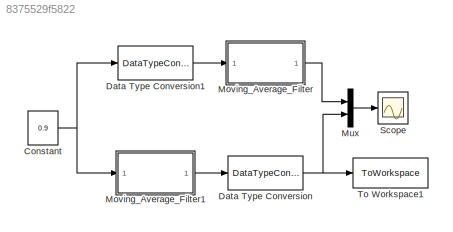
MODEL slx_8375529f5822
KIND model
BLOCK [Constant] Constant
  OutDataTypeStr = fixdt(1,14,13)
  SampleTime = 1/50e6
  Value = 0.9
  VectorParams1D = off
BLOCK [DataTypeConversion] Data Type Conversion
  OutDataTypeStr = double
  RndMeth = Floor
  SaturateOnIntegerOverflow = off
BLOCK [DataTypeConversion] Data Type Conversion1
  OutDataTypeStr = double
  RndMeth = Floor
  SaturateOnIntegerOverflow = off
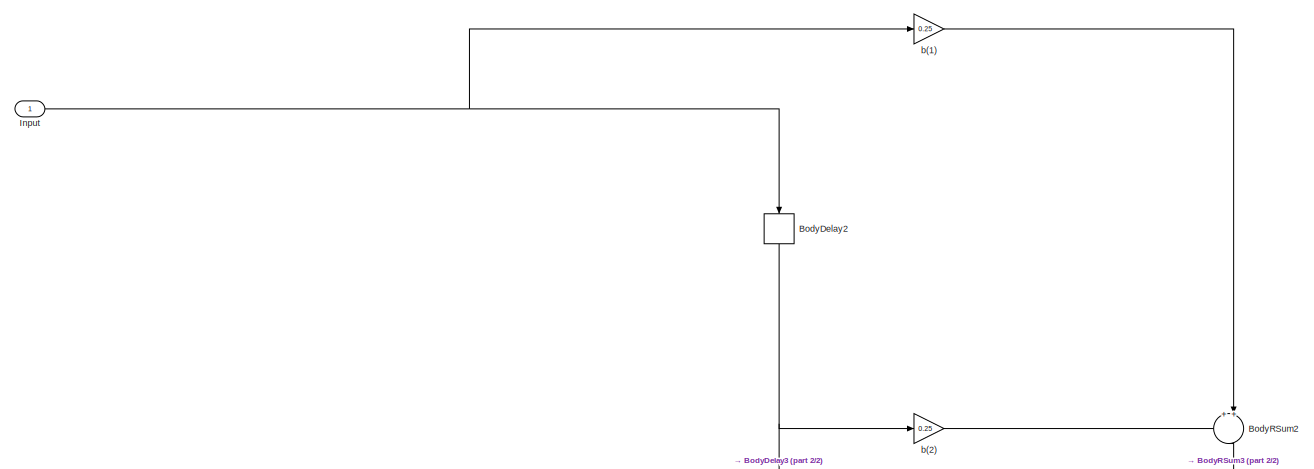
[diagram: Moving_Average_Filter - part 1/2, full width, top band]
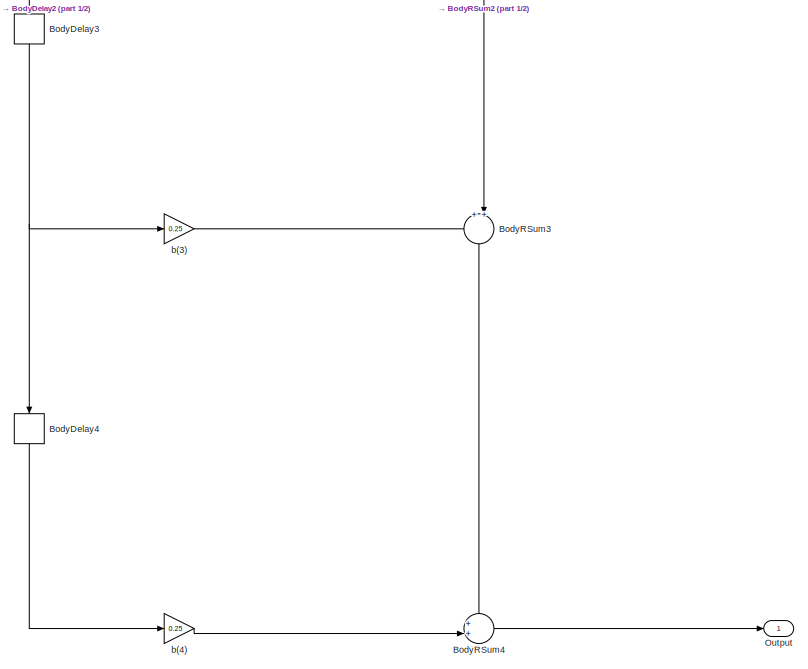
[diagram: Moving_Average_Filter - part 2/2, bottom right region]
BLOCK [SubSystem] Moving_Average_Filter
  ErrorFcn = dspFilterRealizedInBasicElemsAlgLoopErrFcnCallback
  FunctionWithSeparateData = off
  MaskHideContents = off
  MinAlgLoopOccurrences = off
  Opaque = off
  Ports = [1, 1]
  PropExecContextOutsideSubsystem = off
  RTWSystemCode = Auto
  RequestExecContextInheritance = off
  Tag = FilterWizardSubSystem
  UserDataPersistent = on
BLOCK [Delay] Moving_Average_Filter/BodyDelay2
  DelayLength = 1
  InitialCondition = 0
  InputPortMap = u0
  Ports = [1, 1]
BLOCK [Delay] Moving_Average_Filter/BodyDelay3
  DelayLength = 1
  InitialCondition = 0
  InputPortMap = u0
  Ports = [1, 1]
BLOCK [Delay] Moving_Average_Filter/BodyDelay4
  DelayLength = 1
  InitialCondition = 0
  InputPortMap = u0
  Ports = [1, 1]
BLOCK [Sum] Moving_Average_Filter/BodyRSum2
  IconShape = round
  InputSameDT = off
  Inputs = ++|
  Ports = [2, 1]
  RndMeth = Nearest
BLOCK [Sum] Moving_Average_Filter/BodyRSum3
  IconShape = round
  InputSameDT = off
  Inputs = ++|
  Ports = [2, 1]
  RndMeth = Nearest
BLOCK [Sum] Moving_Average_Filter/BodyRSum4
  IconShape = round
  InputSameDT = off
  Inputs = ++|
  Ports = [2, 1]
  RndMeth = Nearest
BLOCK [Inport] Moving_Average_Filter/Input
  IconDisplay = Port number
BLOCK [Outport] Moving_Average_Filter/Output
  IconDisplay = Port number
BLOCK [Gain] Moving_Average_Filter/b(1)
  Gain = 0.25
  ParamDataTypeStr = double
  RndMeth = Nearest
BLOCK [Gain] Moving_Average_Filter/b(2)
  Gain = 0.25
  ParamDataTypeStr = double
  RndMeth = Nearest
BLOCK [Gain] Moving_Average_Filter/b(3)
  Gain = 0.25
  ParamDataTypeStr = double
  RndMeth = Nearest
BLOCK [Gain] Moving_Average_Filter/b(4)
  Gain = 0.25
  ParamDataTypeStr = double
  RndMeth = Nearest
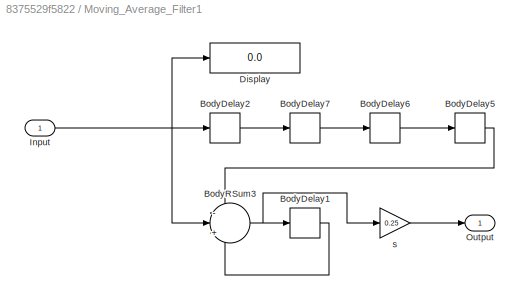
BLOCK [SubSystem] Moving_Average_Filter1
  ErrorFcn = dspFilterRealizedInBasicElemsAlgLoopErrFcnCallback
  FunctionWithSeparateData = off
  MaskHideContents = off
  MinAlgLoopOccurrences = off
  Opaque = off
  Ports = [1, 1]
  PropExecContextOutsideSubsystem = off
  RTWSystemCode = Auto
  RequestExecContextInheritance = off
  Tag = FilterWizardSubSystem
  UserDataPersistent = on
BLOCK [Delay] Moving_Average_Filter1/BodyDelay1
  DelayLength = 1
  InitialCondition = 0
  InputPortMap = u0
  Ports = [1, 1]
BLOCK [Delay] Moving_Average_Filter1/BodyDelay2
  DelayLength = 1
  InitialCondition = 0
  InputPortMap = u0
  Ports = [1, 1]
BLOCK [Delay] Moving_Average_Filter1/BodyDelay5
  DelayLength = 1
  InitialCondition = 0
  InputPortMap = u0
  Ports = [1, 1]
BLOCK [Delay] Moving_Average_Filter1/BodyDelay6
  DelayLength = 1
  InitialCondition = 0
  InputPortMap = u0
  Ports = [1, 1]
BLOCK [Delay] Moving_Average_Filter1/BodyDelay7
  DelayLength = 1
  InitialCondition = 0
  InputPortMap = u0
  Ports = [1, 1]
BLOCK [Sum] Moving_Average_Filter1/BodyRSum3
  AccumDataTypeStr = fixdt(1,16,13)
  IconShape = round
  InputSameDT = off
  Inputs = -|+|+
  OutDataTypeStr = fixdt(1,16,13)
  Ports = [3, 1]
BLOCK [Display] Moving_Average_Filter1/Display
  Decimation = 1
  Format = long
  Lockdown = off
  Ports = [1]
BLOCK [Inport] Moving_Average_Filter1/Input
  IconDisplay = Port number
BLOCK [Outport] Moving_Average_Filter1/Output
  IconDisplay = Port number
BLOCK [Gain] Moving_Average_Filter1/s
  Gain = 0.25
  OutDataTypeStr = fixdt(1,14,13)
  ParamDataTypeStr = fixdt(1,3,2)
BLOCK [Mux] Mux
  DisplayOption = bar
  Inputs = 2
  Ports = [2, 1]
BLOCK [Scope] Scope
  DataFormat = StructureWithTime
  Floating = off
  LimitDataPoints = off
  NumInputPorts = 1
  Ports = [1]
  SampleTime = 0
  ShowLegends = off
  YMax = 0.85
  YMin = 0.1
  ZoomMode = xonly
BLOCK [ToWorkspace] To Workspace1
  MaxDataPoints = inf
  Ports = [1]
  SampleTime = -1
  SaveFormat = Timeseries
  VariableName = MAF_Output
NET Constant:1 -> Data Type Conversion1:1, Moving_Average_Filter1:1
LINE Data Type Conversion1:1 -> Moving_Average_Filter:1
NET Data Type Conversion:1 -> Mux:2, To Workspace1:1
NET Moving_Average_Filter/BodyDelay2:1 -> Moving_Average_Filter/BodyDelay3:1, Moving_Average_Filter/b(2):1
NET Moving_Average_Filter/BodyDelay3:1 -> Moving_Average_Filter/BodyDelay4:1, Moving_Average_Filter/b(3):1
LINE Moving_Average_Filter/BodyDelay4:1 -> Moving_Average_Filter/b(4):1
LINE Moving_Average_Filter/BodyRSum2:1 -> Moving_Average_Filter/BodyRSum3:2
LINE Moving_Average_Filter/BodyRSum3:1 -> Moving_Average_Filter/BodyRSum4:1
LINE Moving_Average_Filter/BodyRSum4:1 -> Moving_Average_Filter/Output:1
NET Moving_Average_Filter/Input:1 -> Moving_Average_Filter/BodyDelay2:1, Moving_Average_Filter/b(1):1
LINE Moving_Average_Filter/b(1):1 -> Moving_Average_Filter/BodyRSum2:2
LINE Moving_Average_Filter/b(2):1 -> Moving_Average_Filter/BodyRSum2:1
LINE Moving_Average_Filter/b(3):1 -> Moving_Average_Filter/BodyRSum3:1
LINE Moving_Average_Filter/b(4):1 -> Moving_Average_Filter/BodyRSum4:2
LINE Moving_Average_Filter1/BodyDelay1:1 -> Moving_Average_Filter1/BodyRSum3:3
LINE Moving_Average_Filter1/BodyDelay2:1 -> Moving_Average_Filter1/BodyDelay7:1
LINE Moving_Average_Filter1/BodyDelay5:1 -> Moving_Average_Filter1/BodyRSum3:1
LINE Moving_Average_Filter1/BodyDelay6:1 -> Moving_Average_Filter1/BodyDelay5:1
LINE Moving_Average_Filter1/BodyDelay7:1 -> Moving_Average_Filter1/BodyDelay6:1
NET Moving_Average_Filter1/BodyRSum3:1 -> Moving_Average_Filter1/BodyDelay1:1, Moving_Average_Filter1/s:1
NET Moving_Average_Filter1/Input:1 -> Moving_Average_Filter1/BodyDelay2:1, Moving_Average_Filter1/BodyRSum3:2, Moving_Average_Filter1/Display:1
LINE Moving_Average_Filter1/s:1 -> Moving_Average_Filter1/Output:1
LINE Moving_Average_Filter1:1 -> Data Type Conversion:1
LINE Moving_Average_Filter:1 -> Mux:1
LINE Mux:1 -> Scope:1
note: NET lines group one-source signal fan-out (src -> all destinations, sorted); 1:1 wires keep LINE
